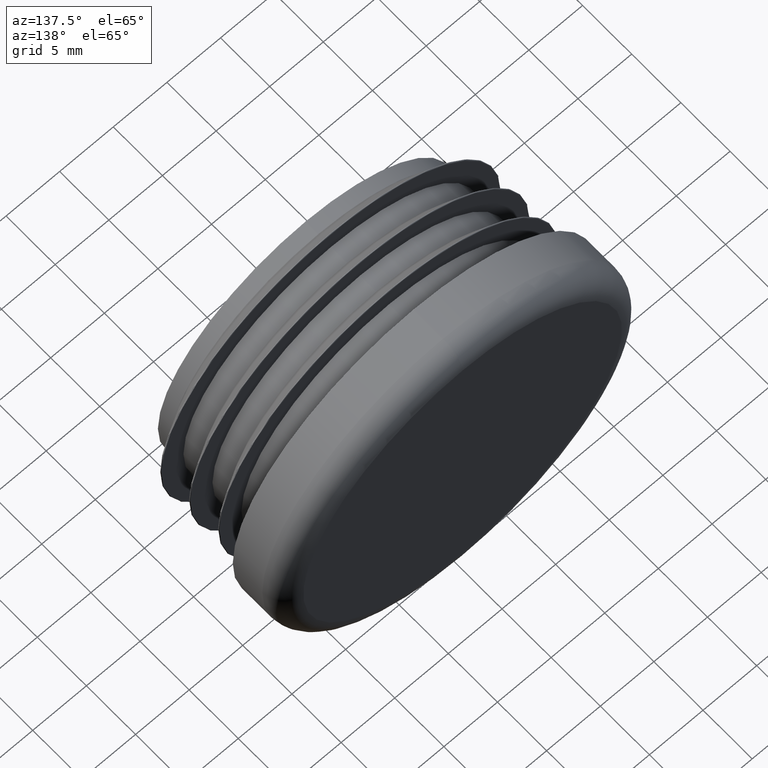
[diagram: clean part render]
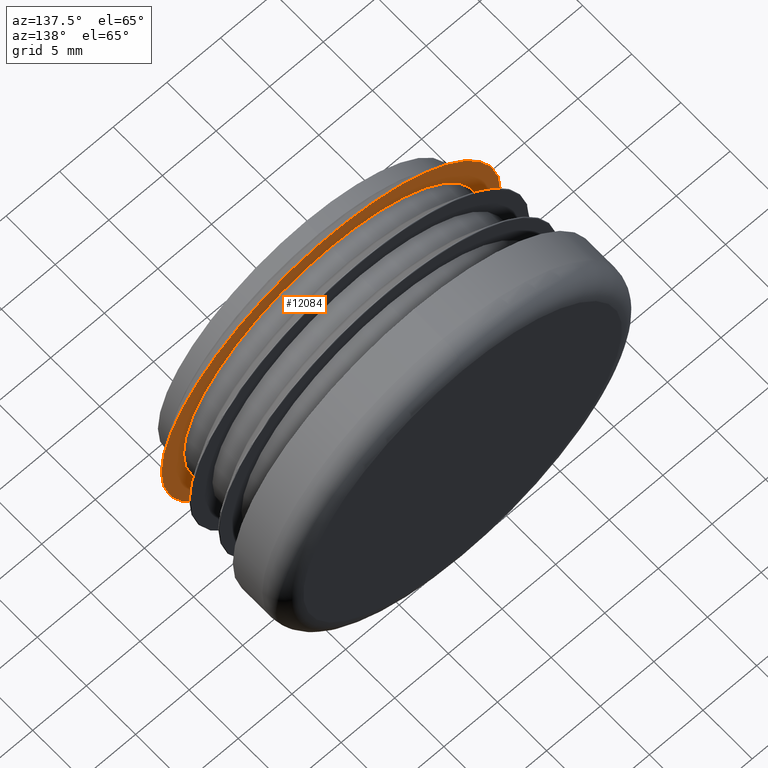
[diagram: same view with one face highlighted and labeled with its STEP entity id]
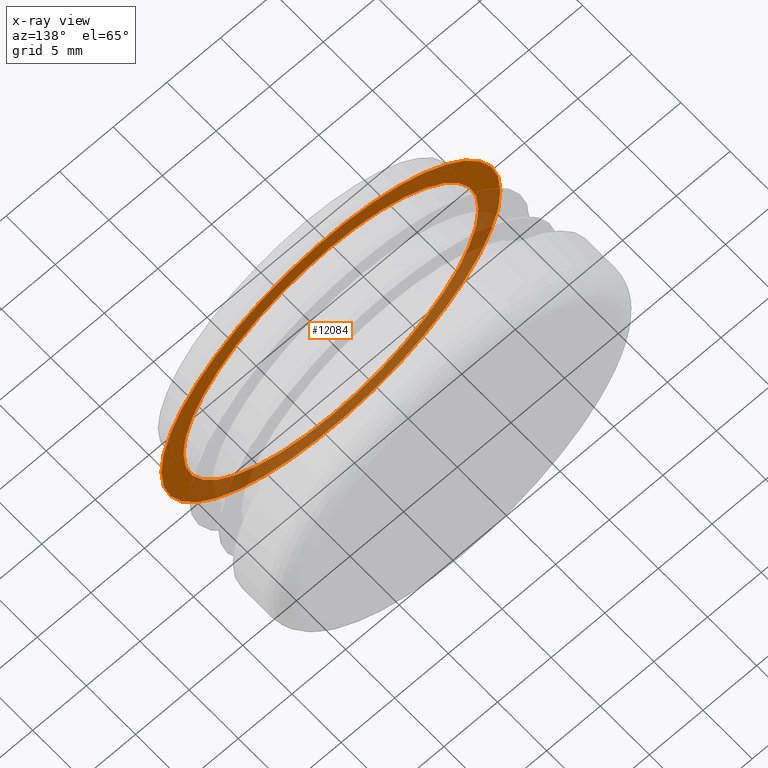
[diagram: x-ray of the same camera — body ghosted, the highlighted face saturated]
A machine part, auxiliary view. The second image highlights one B-rep face of the part: STEP entity #12084.
The next image is the same camera in x-ray: the body ghosted, the highlighted face saturated — about 45% of this face is hidden behind the body in this view.
In plain terms, the highlighted planar face has unit normal (-0, 1, 0).
Its self-contained STEP definition (entity closure, byte-faithful):
#452 = CIRCLE ( 'NONE', #854, 15.80000000000008775 ) ;
#708 = CARTESIAN_POINT ( 'NONE',  ( 0.000000000000000000, 2.599999999999855760, 0.000000000000000000 ) ) ;
#734 = CIRCLE ( 'NONE', #6490, 13.74999999999999822 ) ;
#854 = AXIS2_PLACEMENT_3D ( 'NONE', #8141, #6335, #6542 ) ;
#931 = CIRCLE ( 'NONE', #11171, 15.80000000000008775 ) ;
#953 = DIRECTION ( 'NONE',  ( 1.000000000000000000, 1.048519569340406107E-14, 0.000000000000000000 ) ) ;
#1007 = CARTESIAN_POINT ( 'NONE',  ( -1.508131906462103254E-27, 2.599999999999855760, -13.74999999999999822 ) ) ;
#1780 = EDGE_CURVE ( 'NONE', #7137, #9781, #11538, .T. ) ;
#1916 = DIRECTION ( 'NONE',  ( 1.047444401652940164E-14, -1.000000000000000000, -0.000000000000000000 ) ) ;
#1963 = CARTESIAN_POINT ( 'NONE',  ( 0.000000000000000000, 2.599999999999855760, 0.000000000000000000 ) ) ;
#2161 = EDGE_CURVE ( 'NONE', #9781, #7137, #734, .T. ) ;
#2305 = DIRECTION ( 'NONE',  ( -1.047444401652940164E-14, 1.000000000000000000, 0.000000000000000000 ) ) ;
#2617 = EDGE_LOOP ( 'NONE', ( #5975, #6786 ) ) ;
#2875 = EDGE_CURVE ( 'NONE', #10318, #11930, #452, .T. ) ;
#3459 = AXIS2_PLACEMENT_3D ( 'NONE', #708, #7479, #9316 ) ;
#3636 = AXIS2_PLACEMENT_3D ( 'NONE', #9175, #2305, #10141 ) ;
#3652 = DIRECTION ( 'NONE',  ( 1.047444401652940164E-14, -1.000000000000000000, -0.000000000000000000 ) ) ;
#4167 = CARTESIAN_POINT ( 'NONE',  ( -15.80000000000011617, 2.599999999999689226, 1.936481062908739668E-15 ) ) ;
#4626 = EDGE_LOOP ( 'NONE', ( #9944, #8317 ) ) ;
#5975 = ORIENTED_EDGE ( 'NONE', *, *, #2875, .F. ) ;
#6335 = DIRECTION ( 'NONE',  ( 1.047444401652940164E-14, -1.000000000000000000, -0.000000000000000000 ) ) ;
#6386 = FACE_BOUND ( 'NONE', #4626, .T. ) ;
#6490 = AXIS2_PLACEMENT_3D ( 'NONE', #1963, #1916, #6605 ) ;
#6542 = DIRECTION ( 'NONE',  ( 1.000000000000000000, 1.048519569340406107E-14, 0.000000000000000000 ) ) ;
#6605 = DIRECTION ( 'NONE',  ( -1.000000000000000000, -1.047142170953272746E-14, 0.000000000000000000 ) ) ;
#6786 = ORIENTED_EDGE ( 'NONE', *, *, #10498, .F. ) ;
#7007 = FACE_OUTER_BOUND ( 'NONE', #2617, .T. ) ;
#7137 = VERTEX_POINT ( 'NONE', #1007 ) ;
#7479 = DIRECTION ( 'NONE',  ( 1.047444401652940164E-14, -1.000000000000000000, -0.000000000000000000 ) ) ;
#7592 = CARTESIAN_POINT ( 'NONE',  ( 1.683889348826102154E-15, 2.599999999999855760, 13.74999999999999822 ) ) ;
#8135 = PLANE ( 'NONE',  #3636 ) ;
#8141 = CARTESIAN_POINT ( 'NONE',  ( -2.723355444297492556E-14, 2.599999999999854872, 0.000000000000000000 ) ) ;
#8317 = ORIENTED_EDGE ( 'NONE', *, *, #2161, .T. ) ;
#8634 = CARTESIAN_POINT ( 'NONE',  ( -2.723355444297492556E-14, 2.599999999999854872, 0.000000000000000000 ) ) ;
#9175 = CARTESIAN_POINT ( 'NONE',  ( 13.75000000000006040, 2.599999999999999645, 0.000000000000000000 ) ) ;
#9316 = DIRECTION ( 'NONE',  ( -1.000000000000000000, -1.047142170953272746E-14, 0.000000000000000000 ) ) ;
#9781 = VERTEX_POINT ( 'NONE', #7592 ) ;
#9944 = ORIENTED_EDGE ( 'NONE', *, *, #1780, .T. ) ;
#10141 = DIRECTION ( 'NONE',  ( -1.000000000000000000, -1.047444401652940164E-14, 0.000000000000000000 ) ) ;
#10318 = VERTEX_POINT ( 'NONE', #10553 ) ;
#10498 = EDGE_CURVE ( 'NONE', #11930, #10318, #931, .T. ) ;
#10553 = CARTESIAN_POINT ( 'NONE',  ( 15.80000000000006111, 2.600000000000020517, 0.000000000000000000 ) ) ;
#11171 = AXIS2_PLACEMENT_3D ( 'NONE', #8634, #3652, #953 ) ;
#11538 = CIRCLE ( 'NONE', #3459, 13.74999999999999822 ) ;
#11930 = VERTEX_POINT ( 'NONE', #4167 ) ;
#12084 = ADVANCED_FACE ( 'NONE', ( #6386, #7007 ), #8135, .T. ) ;